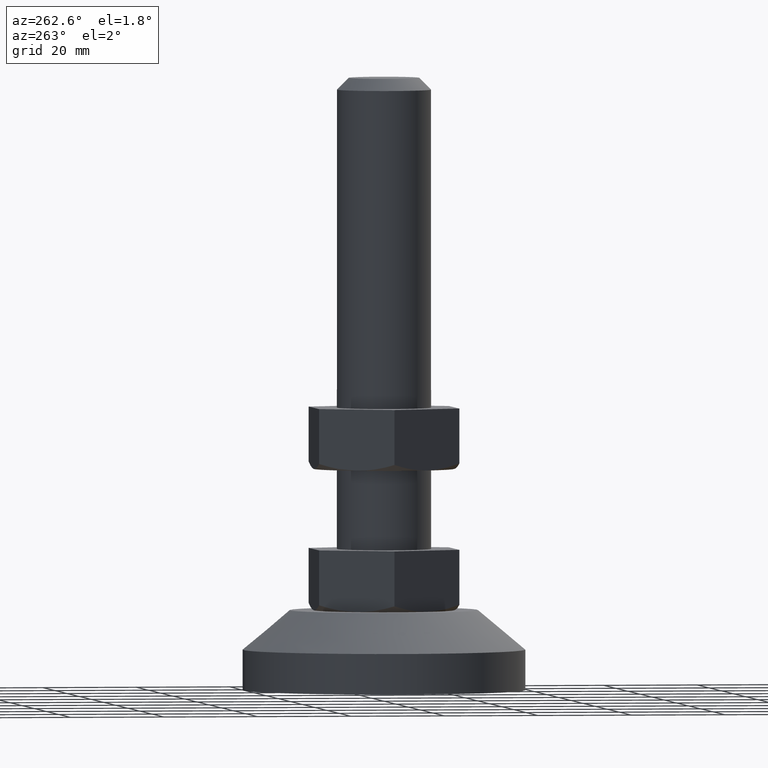
[diagram: clean part render]
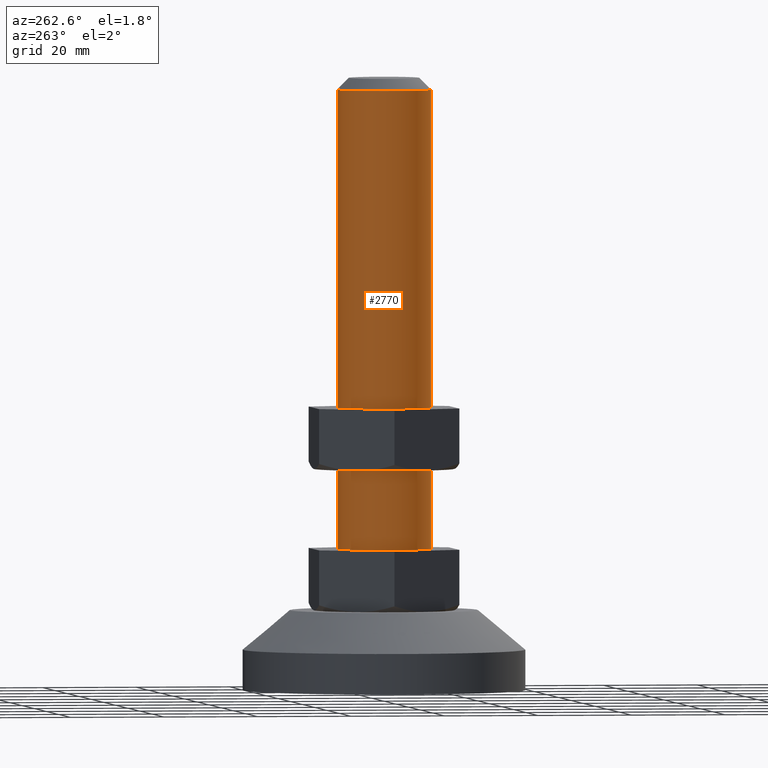
[diagram: same view with one face highlighted and labeled with its STEP entity id]
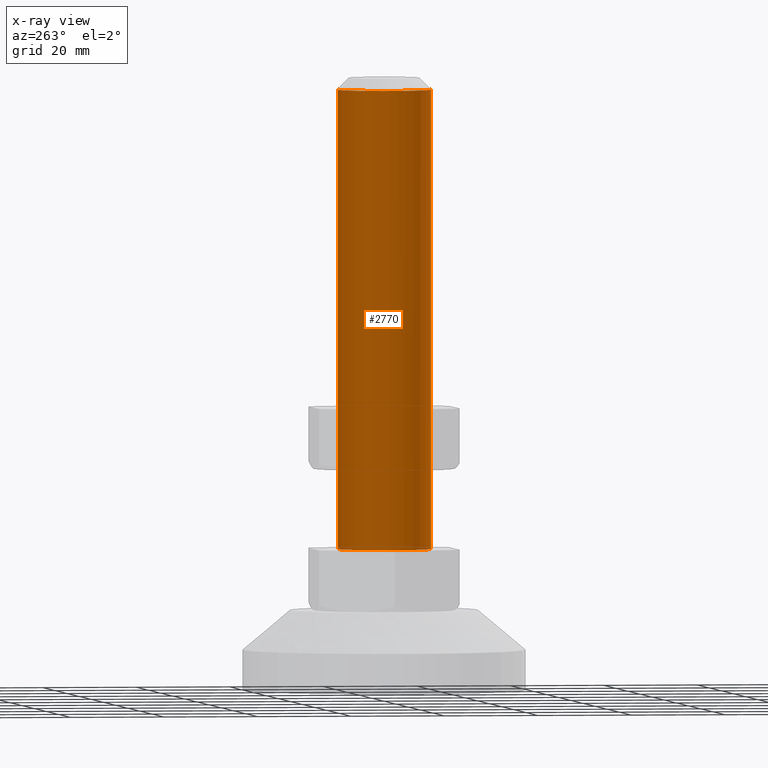
[diagram: x-ray of the same camera — body ghosted, the highlighted face saturated]
A machine part, auxiliary view. The second image highlights one B-rep face of the part: STEP entity #2770.
The next image is the same camera in x-ray: the body ghosted, the highlighted face saturated — about 0% of this face is hidden behind the body in this view.
In plain terms, the highlighted face is a freeform B-spline surface patch.
Its self-contained STEP definition (entity closure, byte-faithful):
#2585=CARTESIAN_POINT('',(-0.087265355858829,-9.999619230753311,127.499999999880700));
#2586=VERTEX_POINT('',#2585);
#2587=CARTESIAN_POINT('',(-10.0,0.0,127.500000000000000));
#2588=VERTEX_POINT('',#2587);
#2589=CARTESIAN_POINT('',(-0.087265355858829,-9.999619230753311,127.499999999880760));
#2590=CARTESIAN_POINT('',(-10.000000000000522,-9.913112105142872,127.499999999940390));
#2591=CARTESIAN_POINT('',(-10.0,0.0,127.500000000000000));
#2599=(BOUNDED_CURVE()B_SPLINE_CURVE(2,(#2589,#2590,#2591),.UNSPECIFIED.,.F.,.U.)B_SPLINE_CURVE_WITH_KNOTS((3,3),(0.251539894350383,0.500000000000000),.UNSPECIFIED.)CURVE()GEOMETRIC_REPRESENTATION_ITEM()RATIONAL_B_SPLINE_CURVE((0.996414028064774,0.708910879638213,1.0))REPRESENTATION_ITEM(''));
#2600=EDGE_CURVE('',#2586,#2588,#2599,.T.);
#2616=CARTESIAN_POINT('',(-0.610485395432718,9.981347984213521,127.500000000000000));
#2617=VERTEX_POINT('',#2616);
#2625=CARTESIAN_POINT('',(-10.0,0.0,127.500000000000000));
#2626=CARTESIAN_POINT('',(-10.0,9.407060668977492,127.499999999999990));
#2627=CARTESIAN_POINT('',(-0.610485395432720,9.981347984213521,127.499999999999970));
#2635=(BOUNDED_CURVE()B_SPLINE_CURVE(2,(#2625,#2626,#2627),.UNSPECIFIED.,.F.,.U.)B_SPLINE_CURVE_WITH_KNOTS((3,3),(0.500000000000000,0.739332962240514),.UNSPECIFIED.)CURVE()GEOMETRIC_REPRESENTATION_ITEM()RATIONAL_B_SPLINE_CURVE((1.0,0.719603993284870,0.976072041670084))REPRESENTATION_ITEM(''));
#2636=EDGE_CURVE('',#2588,#2617,#2635,.T.);
#2659=CARTESIAN_POINT('',(0.610485395432717,-9.981347984213521,127.500000000000000));
#2660=VERTEX_POINT('',#2659);
#2661=CARTESIAN_POINT('',(0.610485395432717,-9.981347984213521,127.500000000000000));
#2662=CARTESIAN_POINT('',(0.378209458066192,-9.995555451619115,127.499999999960290));
#2663=CARTESIAN_POINT('',(0.145435420433028,-10.001650871376061,127.499999999920600));
#2664=CARTESIAN_POINT('',(-0.087265355858829,-9.999619230753311,127.499999999880700));
#2665=B_SPLINE_CURVE_WITH_KNOTS('',3,(#2661,#2662,#2663,#2664),.UNSPECIFIED.,.F.,.U.,(4,4),(1.108750E-010,0.698133916919531),.UNSPECIFIED.);
#2666=EDGE_CURVE('',#2660,#2586,#2665,.T.);
#2703=CARTESIAN_POINT('',(0.610485395348570,-9.981347984218667,129.937500000000000));
#2704=CARTESIAN_POINT('',(-9.370862588870097,-10.591833379567237,129.937500000000030));
#2705=CARTESIAN_POINT('',(-9.981347984218667,-0.610485395348570,129.937500000000000));
#2706=CARTESIAN_POINT('',(-10.591833379567237,9.370862588870097,129.937500000000030));
#2707=CARTESIAN_POINT('',(-0.610485395348570,9.981347984218667,129.937500000000000));
#2708=CARTESIAN_POINT('',(0.610485395348570,-9.981347984218667,27.501562500000009));
#2709=CARTESIAN_POINT('',(-9.370862588870097,-10.591833379567237,27.501562500000013));
#2710=CARTESIAN_POINT('',(-9.981347984218667,-0.610485395348570,27.501562500000009));
#2711=CARTESIAN_POINT('',(-10.591833379567237,9.370862588870097,27.501562500000013));
#2712=CARTESIAN_POINT('',(-0.610485395348570,9.981347984218667,27.501562500000009));
#2720=(BOUNDED_SURFACE()B_SPLINE_SURFACE(2,1,((#2703,#2708),(#2704,#2709),(#2705,#2710),(#2706,#2711),(#2707,#2712)),.UNSPECIFIED.,.F.,.F.,.U.)B_SPLINE_SURFACE_WITH_KNOTS((3,2,3),(2,2),(0.0,16.568542494923800,33.137084989847587),(0.0,102.435937499999990),.UNSPECIFIED.)GEOMETRIC_REPRESENTATION_ITEM()RATIONAL_B_SPLINE_SURFACE(((1.0,1.0),(0.707106781186548,0.707106781186548),(1.0,1.0),(0.707106781186548,0.707106781186548),(1.0,1.0)))REPRESENTATION_ITEM('')SURFACE());
#2721=CARTESIAN_POINT('',(0.610485395432717,-9.981347984213521,30.0));
#2722=VERTEX_POINT('',#2721);
#2723=CARTESIAN_POINT('',(-10.0,0.0,30.0));
#2724=VERTEX_POINT('',#2723);
#2725=CARTESIAN_POINT('',(0.610485395432717,-9.981347984213523,29.999999999999993));
#2726=CARTESIAN_POINT('',(0.305527633028081,-9.999999999999998,30.0));
#2727=CARTESIAN_POINT('',(0.0,-10.0,30.0));
#2728=CARTESIAN_POINT('',(-10.000000000000002,-10.000000000000002,30.000000000000004));
#2729=CARTESIAN_POINT('',(-10.0,0.0,30.0));
#2737=(BOUNDED_CURVE()B_SPLINE_CURVE(2,(#2725,#2726,#2727,#2728,#2729),.UNSPECIFIED.,.F.,.U.)B_SPLINE_CURVE_WITH_KNOTS((3,2,3),(0.239332962240514,0.250000000000000,0.500000000000000),.UNSPECIFIED.)CURVE()GEOMETRIC_REPRESENTATION_ITEM()RATIONAL_B_SPLINE_CURVE((0.976072041670084,0.987502787901678,1.0,0.707106781186548,1.0))REPRESENTATION_ITEM(''));
#2738=EDGE_CURVE('',#2722,#2724,#2737,.T.);
#2739=ORIENTED_EDGE('',*,*,#2738,.F.);
#2740=CARTESIAN_POINT('',(0.610485395432717,-9.981347984213521,127.500000000000000));
#2741=CARTESIAN_POINT('',(0.610485395432717,-9.981347984213521,30.0));
#2742=QUASI_UNIFORM_CURVE('',1,(#2740,#2741),.UNSPECIFIED.,.F.,.U.);
#2743=EDGE_CURVE('',#2660,#2722,#2742,.T.);
#2744=ORIENTED_EDGE('',*,*,#2743,.F.);
#2745=ORIENTED_EDGE('',*,*,#2666,.T.);
#2746=ORIENTED_EDGE('',*,*,#2600,.T.);
#2747=ORIENTED_EDGE('',*,*,#2636,.T.);
#2748=CARTESIAN_POINT('',(-0.610485395432718,9.981347984213521,30.0));
#2749=VERTEX_POINT('',#2748);
#2750=CARTESIAN_POINT('',(-0.610485395432718,9.981347984213521,127.500000000000000));
#2751=CARTESIAN_POINT('',(-0.610485395432718,9.981347984213521,30.0));
#2752=QUASI_UNIFORM_CURVE('',1,(#2750,#2751),.UNSPECIFIED.,.F.,.U.);
#2753=EDGE_CURVE('',#2617,#2749,#2752,.T.);
#2754=ORIENTED_EDGE('',*,*,#2753,.T.);
#2755=CARTESIAN_POINT('',(-10.0,0.0,30.0));
#2756=CARTESIAN_POINT('',(-10.0,9.407060668977492,30.0));
#2757=CARTESIAN_POINT('',(-0.610485395432720,9.981347984213521,29.999999999999996));
#2765=(BOUNDED_CURVE()B_SPLINE_CURVE(2,(#2755,#2756,#2757),.UNSPECIFIED.,.F.,.U.)B_SPLINE_CURVE_WITH_KNOTS((3,3),(0.500000000000000,0.739332962240514),.UNSPECIFIED.)CURVE()GEOMETRIC_REPRESENTATION_ITEM()RATIONAL_B_SPLINE_CURVE((1.0,0.719603993284870,0.976072041670084))REPRESENTATION_ITEM(''));
#2766=EDGE_CURVE('',#2724,#2749,#2765,.T.);
#2767=ORIENTED_EDGE('',*,*,#2766,.F.);
#2768=EDGE_LOOP('',(#2739,#2744,#2745,#2746,#2747,#2754,#2767));
#2769=FACE_OUTER_BOUND('',#2768,.T.);
#2770=ADVANCED_FACE('',(#2769),#2720,.T.);